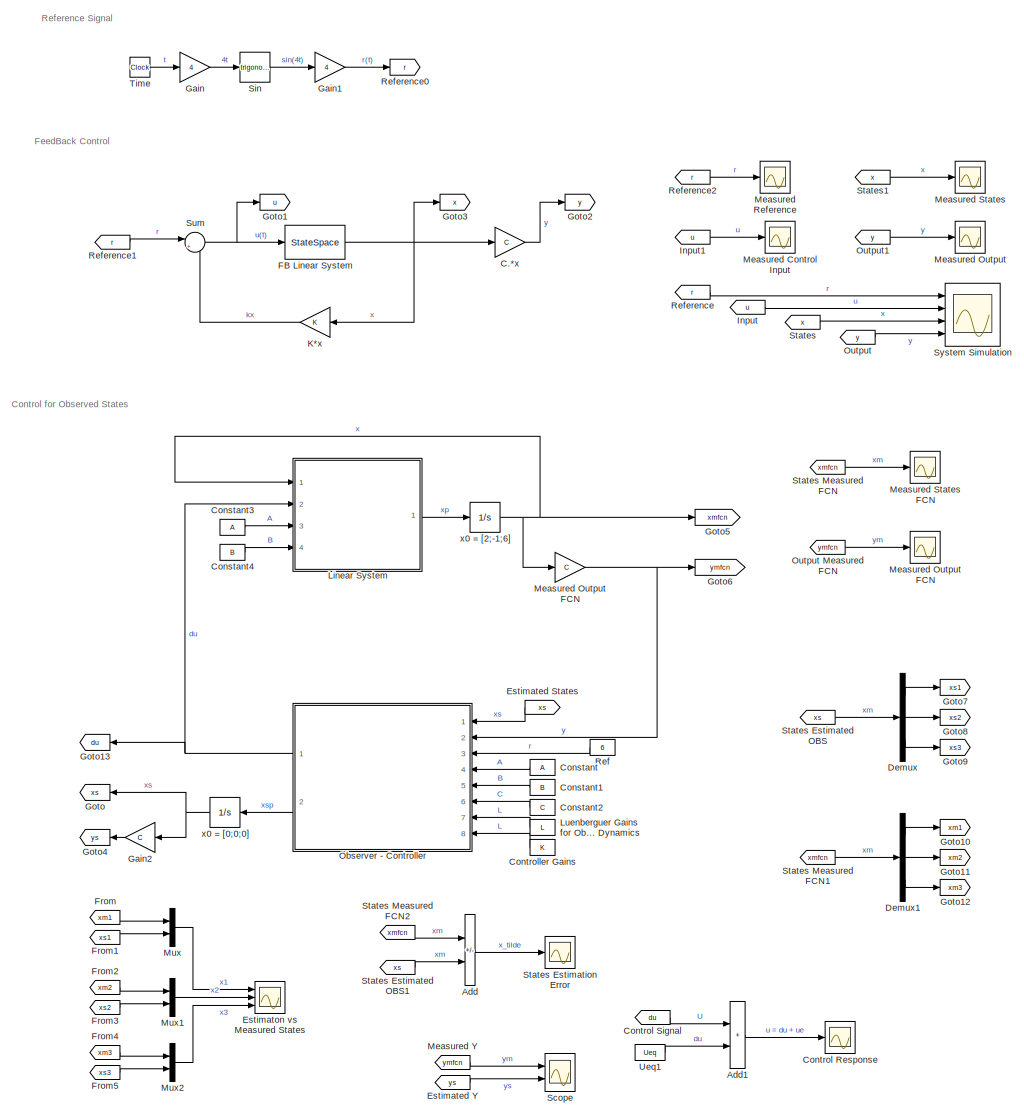
[diagram: root canvas - part 1/1, most of the canvas]
MODEL slx_f0c7a062db7a
KIND model
CONFIG AbsTol = auto
CONFIG EnableMultiTasking = off
CONFIG FixedStep = auto
CONFIG MaxStep = auto
CONFIG MinStep = auto
CONFIG RelTol = 1e-3
CONFIG SampleTimeConstraint = Unconstrained
CONFIG SolverName = VariableStepAuto
CONFIG StartTime = 0.0
CONFIG StopTime = 2
BLOCK [Sum] Add
  IconShape = rectangular
  Inputs = +-
  Ports = [2, 1]
BLOCK [Sum] Add1
  IconShape = rectangular
  Ports = [2, 1]
BLOCK [Gain] C.*x
  Gain = C
BLOCK [Constant] Constant
  NameLocation = top
  Value = A
  VectorParams1D = off
BLOCK [Constant] Constant1
  NameLocation = right
  Value = B
  VectorParams1D = off
BLOCK [Constant] Constant2
  NameLocation = right
  Value = C
  VectorParams1D = off
BLOCK [Constant] Constant3
  Value = A
BLOCK [Constant] Constant4
  Value = B
BLOCK [Scope] Control Response
  Floating = off
  NumInputPorts = 1
  Ports = [1]
  ScopeSpecificationString = Simulink.scopes.TimeScopeBlockCfg('CurrentConfiguration', extmgr.ConfigurationSet(extmgr.Configuration('Core','General UI',true),extmgr.Configuration('Core','Source UI',true),extmgr.Configuration('Sources','WiredSimulink',true,'DataLoggingVariableName','ScopeData2'),extmgr.Configuration('Visuals','Time Domain',true,'SerializedDisplays',{struct('MinYLimReal','-1847.97801','MaxYLimReal','1246.67807'...<+2034ch>
BLOCK [From] Control Signal
  GotoTag = du
BLOCK [Constant] Controller Gains
  NameLocation = right
  Value = K
  VectorParams1D = off
BLOCK [Demux] Demux
  Outputs = 3
  Ports = [1, 3]
BLOCK [Demux] Demux1
  Outputs = 3
  Ports = [1, 3]
BLOCK [From] Estimated States
  GotoTag = xs
  NameLocation = right
BLOCK [From] Estimated Y
  GotoTag = ys
BLOCK [Scope] Estimaton vs Measured States
  Floating = off
  NumInputPorts = 3
  Ports = [3]
  ScopeSpecificationString = Simulink.scopes.TimeScopeBlockCfg('CurrentConfiguration', extmgr.ConfigurationSet(extmgr.Configuration('Core','General UI',true),extmgr.Configuration('Core','Source UI',true),extmgr.Configuration('Sources','WiredSimulink',true,'DataLoggingVariableName','ScopeData6'),extmgr.Configuration('Visuals','Time Domain',true,'SerializedDisplays',{struct('MinYLimReal','-2826.63737','MaxYLimReal','1577.64144'...<+3199ch>
BLOCK [StateSpace] FB Linear System
  A = A
  B = B
  C = eye(3)
  D = zeros(3,1)
  InitialCondition = x0
  Ports = [1, 1]
BLOCK [From] From
  GotoTag = xm1
BLOCK [From] From1
  GotoTag = xs1
BLOCK [From] From2
  GotoTag = xm2
BLOCK [From] From3
  GotoTag = xs2
BLOCK [From] From4
  GotoTag = xm3
BLOCK [From] From5
  GotoTag = xs3
BLOCK [Gain] Gain
  Gain = 4
BLOCK [Gain] Gain1
  Gain = 4
BLOCK [Gain] Gain2
  Gain = C
  Multiplication = Matrix(K*u)
  NameLocation = top
BLOCK [Goto] Goto
  GotoTag = xs
  NameLocation = top
BLOCK [Goto] Goto1
  GotoTag = u
BLOCK [Goto] Goto10
  GotoTag = xm1
BLOCK [Goto] Goto11
  GotoTag = xm2
BLOCK [Goto] Goto12
  GotoTag = xm3
BLOCK [Goto] Goto13
  GotoTag = du
  NameLocation = top
BLOCK [Goto] Goto2
  GotoTag = y
BLOCK [Goto] Goto3
  GotoTag = x
BLOCK [Goto] Goto4
  GotoTag = ys
  NameLocation = top
BLOCK [Goto] Goto5
  GotoTag = xmfcn
BLOCK [Goto] Goto6
  GotoTag = ymfcn
BLOCK [Goto] Goto7
  GotoTag = xs1
BLOCK [Goto] Goto8
  GotoTag = xs2
BLOCK [Goto] Goto9
  GotoTag = xs3
BLOCK [From] Input
  GotoTag = u
BLOCK [From] Input1
  GotoTag = u
BLOCK [Gain] K*x
  Gain = K
  Multiplication = Matrix(K*u)
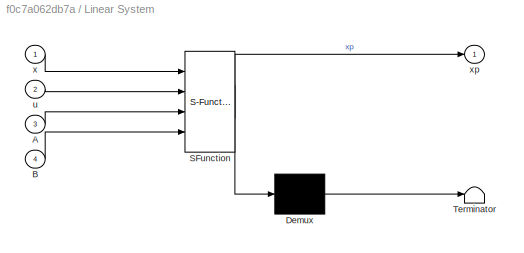
BLOCK [SubSystem] Linear System
  ErrorFcn = Stateflow.Translate.translate
  PermitHierarchicalResolution = ExplicitOnly
  Ports = [4, 1]
  RequestExecContextInheritance = off
  SFBlockType = MATLAB Function
  TreatAsAtomicUnit = on
BLOCK [Demux] Linear System/ Demux 
  Outputs = 1
  Ports = [1, 1]
BLOCK [S-Function] Linear System/ SFunction 
  EnableBusSupport = on
  FunctionName = sf_sfun
  PortCounts = [4 2]
  Ports = [4, 2]
  SFcnIsStateOwnerBlock = off
  SFunctionDeploymentMode = off
  Tag = Stateflow S-Function 1
BLOCK [Terminator] Linear System/ Terminator 
BLOCK [Inport] Linear System/A
  Port = 3
BLOCK [Inport] Linear System/B
  Port = 4
BLOCK [Inport] Linear System/u
  Port = 2
BLOCK [Inport] Linear System/x
BLOCK [Outport] Linear System/xp
BLOCK [Constant] Luenberguer Gains for Observer Dynamics
  NameLocation = right
  Value = L
  VectorParams1D = off
BLOCK [Scope] Measured Control Input
  Floating = off
  NumInputPorts = 1
  Ports = [1]
  ScopeSpecificationString = Simulink.scopes.TimeScopeBlockCfg('CurrentConfiguration', extmgr.ConfigurationSet(extmgr.Configuration('Core','General UI',true),extmgr.Configuration('Core','Source UI',true),extmgr.Configuration('Sources','WiredSimulink',true,'DataLoggingVariableName','ScopeData2'),extmgr.Configuration('Visuals','Time Domain',true,'SerializedDisplays',{struct('MinYLimReal','-21.09138','MaxYLimReal','144.56571','Y...<+1370ch>
BLOCK [Scope] Measured Output
  Floating = off
  NumInputPorts = 1
  Ports = [1]
  ScopeSpecificationString = Simulink.scopes.TimeScopeBlockCfg('CurrentConfiguration', extmgr.ConfigurationSet(extmgr.Configuration('Core','General UI',true),extmgr.Configuration('Core','Source UI',true),extmgr.Configuration('Sources','WiredSimulink',true),extmgr.Configuration('Visuals','Time Domain',true,'SerializedDisplays',{struct('MinYLimReal','-196.04992','MaxYLimReal','143.84575','YLabelReal','','MinYLimMag',' 0.00000',...<+1421ch>
BLOCK [Gain] Measured Output FCN
  Gain = C
  Multiplication = Matrix(K*u)
BLOCK [Scope] Measured Reference
  Floating = off
  NumInputPorts = 1
  Ports = [1]
  ScopeSpecificationString = Simulink.scopes.TimeScopeBlockCfg('CurrentConfiguration', extmgr.ConfigurationSet(extmgr.Configuration('Core','General UI',true),extmgr.Configuration('Core','Source UI',true),extmgr.Configuration('Sources','WiredSimulink',true,'DataLoggingVariableName','ScopeData3'),extmgr.Configuration('Visuals','Time Domain',true,'SerializedDisplays',{struct('MinYLimReal','-4.99675','MaxYLimReal','4.97078','YLab...<+1374ch>
BLOCK [Scope] Measured States
  Floating = off
  NumInputPorts = 1
  Ports = [1]
  ScopeSpecificationString = Simulink.scopes.TimeScopeBlockCfg('CurrentConfiguration', extmgr.ConfigurationSet(extmgr.Configuration('Core','General UI',true),extmgr.Configuration('Core','Source UI',true),extmgr.Configuration('Sources','WiredSimulink',true,'DataLoggingVariableName','ScopeData1'),extmgr.Configuration('Visuals','Time Domain',true,'SerializedDisplays',{struct('MinYLimReal','-18.84981','MaxYLimReal','48.06286','YL...<+1380ch>
BLOCK [Scope] Measured States FCN
  Floating = off
  NumInputPorts = 1
  Ports = [1]
  ScopeSpecificationString = Simulink.scopes.TimeScopeBlockCfg('CurrentConfiguration', extmgr.ConfigurationSet(extmgr.Configuration('Core','General UI',true),extmgr.Configuration('Core','Source UI',true),extmgr.Configuration('Sources','WiredSimulink',true,'DataLoggingVariableName','ScopeData3'),extmgr.Configuration('Visuals','Time Domain',true,'SerializedDisplays',{struct('MinYLimReal','-14.08012','MaxYLimReal','10.79545','YL...<+1431ch>
BLOCK [From] Measured Y
  GotoTag = ymfcn
  NameLocation = top
BLOCK [Mux] Mux
  DisplayOption = bar
  Inputs = 2
  Ports = [2, 1]
BLOCK [Mux] Mux1
  DisplayOption = bar
  Inputs = 2
  Ports = [2, 1]
BLOCK [Mux] Mux2
  DisplayOption = bar
  Inputs = 2
  Ports = [2, 1]
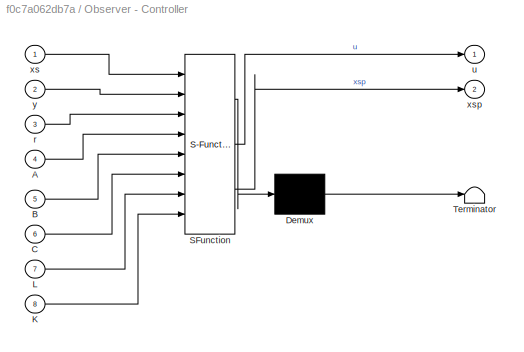
BLOCK [SubSystem] Observer - Controller
  ErrorFcn = Stateflow.Translate.translate
  PermitHierarchicalResolution = ExplicitOnly
  Ports = [8, 2]
  RequestExecContextInheritance = off
  SFBlockType = MATLAB Function
  TreatAsAtomicUnit = on
BLOCK [Demux] Observer - Controller/ Demux 
  Outputs = 1
  Ports = [1, 1]
BLOCK [S-Function] Observer - Controller/ SFunction 
  EnableBusSupport = on
  FunctionName = sf_sfun
  PortCounts = [8 3]
  Ports = [8, 3]
  SFcnIsStateOwnerBlock = off
  SFunctionDeploymentMode = off
  Tag = Stateflow S-Function 2
BLOCK [Terminator] Observer - Controller/ Terminator 
BLOCK [Inport] Observer - Controller/A
  Port = 4
BLOCK [Inport] Observer - Controller/B
  Port = 5
BLOCK [Inport] Observer - Controller/C
  Port = 6
BLOCK [Inport] Observer - Controller/K
  Port = 8
BLOCK [Inport] Observer - Controller/L
  Port = 7
BLOCK [Inport] Observer - Controller/r
  Port = 3
BLOCK [Outport] Observer - Controller/u
BLOCK [Inport] Observer - Controller/xs
BLOCK [Outport] Observer - Controller/xsp
  Port = 2
BLOCK [Inport] Observer - Controller/y
  Port = 2
BLOCK [From] Output
  GotoTag = y
BLOCK [From] Output Measured FCN
  GotoTag = ymfcn
BLOCK [From] Output1
  GotoTag = y
BLOCK [Constant] Ref
  Value = 6
  VectorParams1D = off
BLOCK [From] Reference
  GotoTag = r
BLOCK [Goto] Reference0
  GotoTag = r
BLOCK [From] Reference1
  GotoTag = r
BLOCK [From] Reference2
  GotoTag = r
BLOCK [Scope] Scope
  Floating = off
  NumInputPorts = 2
  Ports = [2]
  ScopeSpecificationString = Simulink.scopes.TimeScopeBlockCfg('CurrentConfiguration', extmgr.ConfigurationSet(extmgr.Configuration('Core','General UI',true),extmgr.Configuration('Core','Source UI',true),extmgr.Configuration('Sources','WiredSimulink',true,'DataLoggingVariableName','ScopeData1'),extmgr.Configuration('Visuals','Time Domain',true,'SerializedDisplays',{struct('MinYLimReal','-1635.19073','MaxYLimReal','993.33222',...<+1655ch>
BLOCK [Trigonometry] Sin
  Ports = [1, 1]
BLOCK [From] States
  GotoTag = x
BLOCK [From] States Estimated OBS
  GotoTag = xs
BLOCK [From] States Estimated OBS1
  GotoTag = xs
BLOCK [Scope] States Estimation Error
  Floating = off
  NumInputPorts = 1
  Ports = [1]
  ScopeSpecificationString = Simulink.scopes.TimeScopeBlockCfg('CurrentConfiguration', extmgr.ConfigurationSet(extmgr.Configuration('Core','General UI',true),extmgr.Configuration('Core','Source UI',true),extmgr.Configuration('Sources','WiredSimulink',true,'DataLoggingVariableName','ScopeData5'),extmgr.Configuration('Visuals','Time Domain',true,'SerializedDisplays',{struct('MinYLimReal','-6745.56995','MaxYLimReal','2943.64843'...<+1489ch>
BLOCK [From] States Measured FCN
  GotoTag = xmfcn
BLOCK [From] States Measured FCN1
  GotoTag = xmfcn
BLOCK [From] States Measured FCN2
  GotoTag = xmfcn
BLOCK [From] States1
  GotoTag = x
BLOCK [Sum] Sum
  Inputs = |+-
  Ports = [2, 1]
BLOCK [Scope] System Simulation
  Floating = off
  NumInputPorts = 4
  Ports = [4]
  ScopeSpecificationString = Simulink.scopes.TimeScopeBlockCfg('CurrentConfiguration', extmgr.ConfigurationSet(extmgr.Configuration('Core','General UI',true,'FigureColor',[0 0 0]),extmgr.Configuration('Core','Source UI',true),extmgr.Configuration('Sources','WiredSimulink',true,'DataLoggingVariableName','ScopeData1'),extmgr.Configuration('Visuals','Time Domain',true,'SerializedDisplays',{struct('MinYLimReal','-4.99917','MaxYLi...<+3951ch>
BLOCK [Clock] Time
BLOCK [Constant] Ueq1
  Value = Ueq
  VectorParams1D = off
BLOCK [Integrator] x0 = [0;0;0]
  InitialCondition = x0b
  Ports = [1, 1]
BLOCK [Integrator] x0 = [2;-1;6]
  InitialCondition = x0
  Ports = [1, 1]
ANNOTATION (root): Control for Observed States
ANNOTATION (root): FeedBack Control
ANNOTATION (root): Reference Signal
LINE Add1:1 -> Control Response:1
LINE Add:1 -> States Estimation Error:1
LINE C.*x:1 -> Goto2:1
LINE Constant1:1 -> Observer - Controller:5
LINE Constant2:1 -> Observer - Controller:6
LINE Constant3:1 -> Linear System:3
LINE Constant4:1 -> Linear System:4
LINE Constant:1 -> Observer - Controller:4
LINE Control Signal:1 -> Add1:1
LINE Controller Gains:1 -> Observer - Controller:8
LINE Demux1:1 -> Goto10:1
LINE Demux1:2 -> Goto11:1
LINE Demux1:3 -> Goto12:1
LINE Demux:1 -> Goto7:1
LINE Demux:2 -> Goto8:1
LINE Demux:3 -> Goto9:1
LINE Estimated States:1 -> Observer - Controller:1
LINE Estimated Y:1 -> Scope:2
NET FB Linear System:1 -> C.*x:1, Goto3:1, K*x:1
LINE From1:1 -> Mux:2
LINE From2:1 -> Mux1:1
LINE From3:1 -> Mux1:2
LINE From4:1 -> Mux2:1
LINE From5:1 -> Mux2:2
LINE From:1 -> Mux:1
LINE Gain1:1 -> Reference0:1
LINE Gain2:1 -> Goto4:1
LINE Gain:1 -> Sin:1
LINE Input1:1 -> Measured Control Input:1
LINE Input:1 -> System Simulation:2
LINE K*x:1 -> Sum:2
LINE Linear System:1 -> x0 = [2;-1;6]:1
LINE Luenberguer Gains for Observer Dynamics:1 -> Observer - Controller:7
NET Measured Output FCN:1 -> Goto6:1, Observer - Controller:2
LINE Measured Y:1 -> Scope:1
LINE Mux1:1 -> Estimaton vs Measured States:2
LINE Mux2:1 -> Estimaton vs Measured States:3
LINE Mux:1 -> Estimaton vs Measured States:1
NET Observer - Controller:1 -> Goto13:1, Linear System:2
LINE Observer - Controller:2 -> x0 = [0;0;0]:1
LINE Output Measured FCN:1 -> Measured Output FCN:1
LINE Output1:1 -> Measured Output:1
LINE Output:1 -> System Simulation:4
LINE Ref:1 -> Observer - Controller:3
LINE Reference1:1 -> Sum:1
LINE Reference2:1 -> Measured Reference:1
LINE Reference:1 -> System Simulation:1
LINE Sin:1 -> Gain1:1
LINE States Estimated OBS1:1 -> Add:2
LINE States Estimated OBS:1 -> Demux:1
LINE States Measured FCN1:1 -> Demux1:1
LINE States Measured FCN2:1 -> Add:1
LINE States Measured FCN:1 -> Measured States FCN:1
LINE States1:1 -> Measured States:1
LINE States:1 -> System Simulation:3
NET Sum:1 -> FB Linear System:1, Goto1:1
LINE Time:1 -> Gain:1
LINE Ueq1:1 -> Add1:2
NET x0 = [0;0;0]:1 -> Gain2:1, Goto:1
NET x0 = [2;-1;6]:1 -> Goto5:1, Linear System:1, Measured Output FCN:1
note: NET lines group one-source signal fan-out (src -> all destinations, sorted); 1:1 wires keep LINE
CHART Linear System states=1 transitions=1
  STATE_LABEL 'eML_blk_kernel()'
  STATE_LABEL 'SCRIPT:\nfunction xp = fcn(x,u,A,B)\n\nxp = A*x + B*u;\n'
CHART Observer - Controller states=1 transitions=1
  STATE_LABEL 'eML_blk_kernel()'
  STATE_LABEL 'SCRIPT:\nfunction [u,xsp] = fcn(xs,y,r,A,B,C,L,K)\n\nxsp = (A -L*C -B*K)*xs + B*r + L*(y);\n\nu = -K*xs + r;\n\n'
CHART  states=0 transitions=0
CHART  states=0 transitions=0
